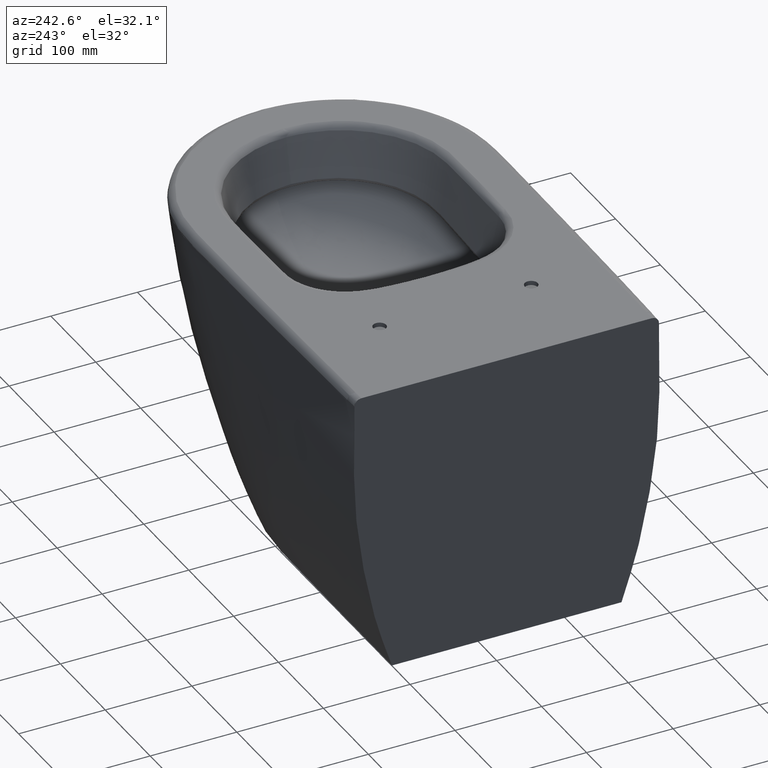
[diagram: clean part render]
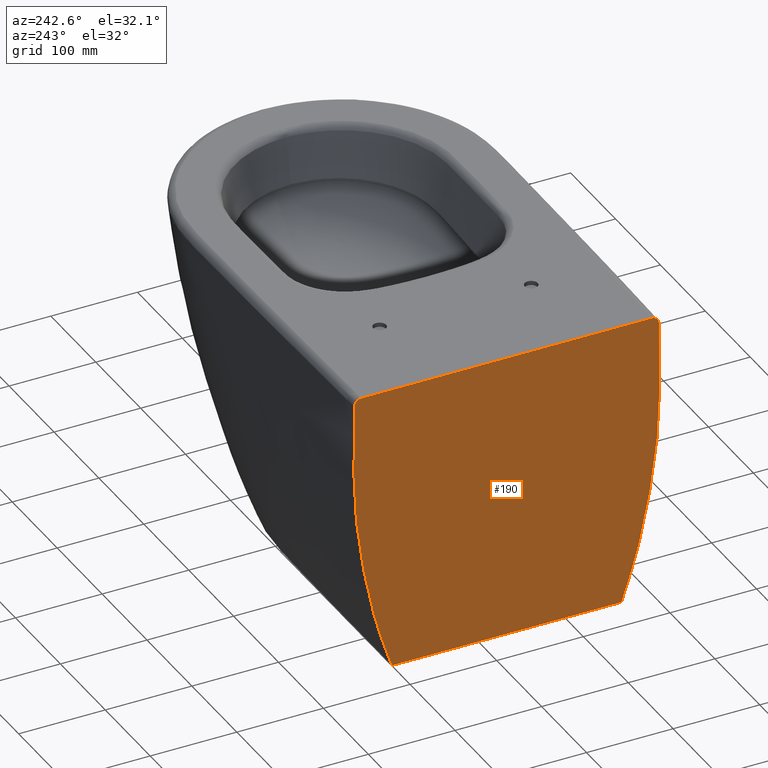
[diagram: same view with one face highlighted and labeled with its STEP entity id]
A machine part, auxiliary view. The second image highlights one B-rep face of the part: STEP entity #190.
In plain terms, the highlighted planar face has unit normal (-1, -0, -0).
Its self-contained STEP definition (entity closure, byte-faithful):
#190=ADVANCED_FACE('',(#269),#232,.T.);
#232=PLANE('',#1283);
#269=FACE_OUTER_BOUND('',#346,.T.);
#346=EDGE_LOOP('',(#591,#592,#593,#594,#595,#596,#597,#598));
#388=LINE('',#5440,#398);
#389=LINE('',#5625,#399);
#390=LINE('',#11125,#400);
#391=LINE('',#11128,#401);
#398=VECTOR('',#1317,1.);
#399=VECTOR('',#1318,1.);
#400=VECTOR('',#1333,1.);
#401=VECTOR('',#1334,1.);
#591=ORIENTED_EDGE('',*,*,#1041,.T.);
#592=ORIENTED_EDGE('',*,*,#1042,.F.);
#593=ORIENTED_EDGE('',*,*,#957,.F.);
#594=ORIENTED_EDGE('',*,*,#1002,.F.);
#595=ORIENTED_EDGE('',*,*,#993,.T.);
#596=ORIENTED_EDGE('',*,*,#1000,.T.);
#597=ORIENTED_EDGE('',*,*,#1043,.T.);
#598=ORIENTED_EDGE('',*,*,#1044,.T.);
#824=VERTEX_POINT('',#2587);
#825=VERTEX_POINT('',#2588);
#853=VERTEX_POINT('',#5441);
#854=VERTEX_POINT('',#5442);
#860=VERTEX_POINT('',#5624);
#881=VERTEX_POINT('',#11126);
#882=VERTEX_POINT('',#11127);
#883=VERTEX_POINT('',#11135);
#957=EDGE_CURVE('',#824,#825,#1147,.T.);
#993=EDGE_CURVE('',#853,#854,#388,.T.);
#1000=EDGE_CURVE('',#854,#860,#389,.T.);
#1002=EDGE_CURVE('',#853,#824,#1186,.T.);
#1041=EDGE_CURVE('',#881,#882,#390,.T.);
#1042=EDGE_CURVE('',#825,#882,#391,.T.);
#1043=EDGE_CURVE('',#860,#883,#1219,.T.);
#1044=EDGE_CURVE('',#883,#881,#1220,.T.);
#1147=B_SPLINE_CURVE_WITH_KNOTS('',3,(#2567,#2568,#2569,#2570,#2571,#2572,
#2573,#2574,#2575,#2576,#2577,#2578,#2579,#2580,#2581,#2582,#2583,#2584,
#2585,#2586),.UNSPECIFIED.,.F.,.F.,(4,2,2,2,2,2,2,2,2,4),(0.,0.125,0.25,
0.375,0.5,0.625,0.75,0.875,0.9375,1.),.UNSPECIFIED.);
#1186=B_SPLINE_CURVE_WITH_KNOTS('',3,(#5629,#5630,#5631,#5632,#5633,#5634),
 .UNSPECIFIED.,.F.,.F.,(4,2,4),(0.,0.5,1.),.UNSPECIFIED.);
#1219=B_SPLINE_CURVE_WITH_KNOTS('',3,(#11129,#11130,#11131,#11132,#11133,
#11134),.UNSPECIFIED.,.F.,.F.,(4,2,4),(0.,0.5,1.),.UNSPECIFIED.);
#1220=B_SPLINE_CURVE_WITH_KNOTS('',3,(#11136,#11137,#11138,#11139,#11140,
#11141,#11142,#11143,#11144,#11145,#11146,#11147,#11148,#11149,#11150,#11151,
#11152,#11153,#11154,#11155),.UNSPECIFIED.,.F.,.F.,(4,2,2,2,2,2,2,2,2,4),
(0.,0.125,0.25,0.375,0.5,0.625,0.75,0.875,0.9375,1.),.UNSPECIFIED.);
#1283=AXIS2_PLACEMENT_3D('',#11156,#1335,#1336);
#1317=DIRECTION('',(-3.1037672432177E-11,1.,-2.36500494983576E-17));
#1318=DIRECTION('',(3.1037672432177E-11,1.,2.36500494983576E-17));
#1333=DIRECTION('',(-3.10376651021188E-11,-0.999999999551392,-2.99535822649717E-5));
#1334=DIRECTION('',(-3.10376651021188E-11,0.999999999551392,-2.99535822649717E-5));
#1335=DIRECTION('',(-1.,-3.1037672432177E-11,-2.44249065417534E-13));
#1336=DIRECTION('',(3.1037672432177E-11,-1.,0.));
#2567=CARTESIAN_POINT('',(-22.2303729984039,-175.729744294228,4.86899509689172));
#2568=CARTESIAN_POINT('',(-22.2303729983862,-176.19104066119,-8.90522365990335));
#2569=CARTESIAN_POINT('',(-22.2303729983765,-176.397434845614,-22.6864145327804));
#2570=CARTESIAN_POINT('',(-22.2303729983654,-176.537885043166,-50.2562453059414));
#2571=CARTESIAN_POINT('',(-22.2303729983635,-176.490781072842,-64.0429845946626));
#2572=CARTESIAN_POINT('',(-22.2303729983701,-176.06097823078,-91.5924114665911));
#2573=CARTESIAN_POINT('',(-22.2303729983791,-175.663362108519,-105.357395053213));
#2574=CARTESIAN_POINT('',(-22.2303729984306,-173.788046580091,-132.829846068431));
#2575=CARTESIAN_POINT('',(-22.2303729984732,-172.307212573598,-146.537146574558));
#2576=CARTESIAN_POINT('',(-22.2303729985807,-168.62924541377,-173.913603514465));
#2577=CARTESIAN_POINT('',(-22.2303729986431,-166.512177599219,-187.537917639426));
#2578=CARTESIAN_POINT('',(-22.2303729987797,-161.897245766288,-214.696735867029));
#2579=CARTESIAN_POINT('',(-22.2303729988586,-159.247194525369,-228.196214475802));
#2580=CARTESIAN_POINT('',(-22.2303729990472,-152.959022366241,-254.964639610759));
#2581=CARTESIAN_POINT('',(-22.2303729991582,-149.278963852838,-268.223801441207));
#2582=CARTESIAN_POINT('',(-22.2303729993395,-143.281935720533,-288.00126655384));
#2583=CARTESIAN_POINT('',(-22.2303729994027,-141.194244765974,-294.573064128176));
#2584=CARTESIAN_POINT('',(-22.2303729995308,-136.963680721457,-307.703784423092));
#2585=CARTESIAN_POINT('',(-22.2303729995948,-134.852155618927,-314.282905629986));
#2586=CARTESIAN_POINT('',(-22.2303729996666,-132.487813327721,-320.771140741786));
#2587=CARTESIAN_POINT('',(-22.2303729984039,-175.729744294228,4.86899509689171));
#2588=CARTESIAN_POINT('',(-22.2303729996665,-132.48781332772,-320.771140741786));
#5440=CARTESIAN_POINT('',(-22.230372999354,-145.181178420822,12.6970186615809));
#5441=CARTESIAN_POINT('',(-22.2303729986572,-167.632111639014,12.6970186615809));
#5442=CARTESIAN_POINT('',(-22.2303730038601,0.,12.6970186615809));
#5624=CARTESIAN_POINT('',(-22.2303729986572,167.632111639014,12.6970186615809));
#5625=CARTESIAN_POINT('',(-22.230372999354,145.181178420822,12.6970186615809));
#5629=CARTESIAN_POINT('',(-22.2303729986572,-167.632111639014,12.6970186615809));
#5630=CARTESIAN_POINT('',(-22.2303729985922,-169.725894174001,12.6970186615809));
#5631=CARTESIAN_POINT('',(-22.2303729985285,-171.773219749257,11.8603457385525));
#5632=CARTESIAN_POINT('',(-22.2303729984353,-174.75092423844,8.98423558046656));
#5633=CARTESIAN_POINT('',(-22.2303729984066,-175.659662374838,6.96162742115705));
#5634=CARTESIAN_POINT('',(-22.230372998404,-175.729744294228,4.86899509689172));
#11125=CARTESIAN_POINT('',(-22.2303730073914,-116.400079786434,-320.77859582577));
#11126=CARTESIAN_POINT('',(-22.2303729996665,132.48781332772,-320.771140741786));
#11127=CARTESIAN_POINT('',(-22.2303730047143,0.,-320.775109226403));
#11128=CARTESIAN_POINT('',(-22.2303730073914,116.400079786434,-320.77859582577));
#11129=CARTESIAN_POINT('',(-22.2303729986572,167.632111639014,12.6970186615809));
#11130=CARTESIAN_POINT('',(-22.2303729985922,169.725894174001,12.6970186615809));
#11131=CARTESIAN_POINT('',(-22.2303729985285,171.773219749257,11.8603457385525));
#11132=CARTESIAN_POINT('',(-22.2303729984353,174.75092423844,8.98423558046656));
#11133=CARTESIAN_POINT('',(-22.2303729984066,175.659662374838,6.96162742115705));
#11134=CARTESIAN_POINT('',(-22.230372998404,175.729744294228,4.86899509689172));
#11135=CARTESIAN_POINT('',(-22.2303729984039,175.729744294228,4.86899509689171));
#11136=CARTESIAN_POINT('',(-22.2303729984039,175.729744294228,4.86899509689172));
#11137=CARTESIAN_POINT('',(-22.2303729983862,176.19104066119,-8.90522365990335));
#11138=CARTESIAN_POINT('',(-22.2303729983765,176.397434845614,-22.6864145327804));
#11139=CARTESIAN_POINT('',(-22.2303729983654,176.537885043166,-50.2562453059414));
#11140=CARTESIAN_POINT('',(-22.2303729983635,176.490781072842,-64.0429845946626));
#11141=CARTESIAN_POINT('',(-22.2303729983701,176.06097823078,-91.5924114665911));
#11142=CARTESIAN_POINT('',(-22.2303729983791,175.663362108519,-105.357395053213));
#11143=CARTESIAN_POINT('',(-22.2303729984306,173.788046580091,-132.829846068431));
#11144=CARTESIAN_POINT('',(-22.2303729984732,172.307212573598,-146.537146574558));
#11145=CARTESIAN_POINT('',(-22.2303729985807,168.62924541377,-173.913603514465));
#11146=CARTESIAN_POINT('',(-22.2303729986431,166.512177599219,-187.537917639426));
#11147=CARTESIAN_POINT('',(-22.2303729987797,161.897245766288,-214.696735867029));
#11148=CARTESIAN_POINT('',(-22.2303729988586,159.247194525369,-228.196214475802));
#11149=CARTESIAN_POINT('',(-22.2303729990472,152.959022366241,-254.964639610759));
#11150=CARTESIAN_POINT('',(-22.2303729991582,149.278963852838,-268.223801441207));
#11151=CARTESIAN_POINT('',(-22.2303729993395,143.281935720533,-288.00126655384));
#11152=CARTESIAN_POINT('',(-22.2303729994027,141.194244765974,-294.573064128176));
#11153=CARTESIAN_POINT('',(-22.2303729995308,136.963680721457,-307.703784423092));
#11154=CARTESIAN_POINT('',(-22.2303729995948,134.852155618927,-314.282905629986));
#11155=CARTESIAN_POINT('',(-22.2303729996666,132.487813327721,-320.771140741786));
#11156=CARTESIAN_POINT('',(-22.2303730022948,-48.3071158131623,-257.492712405663));